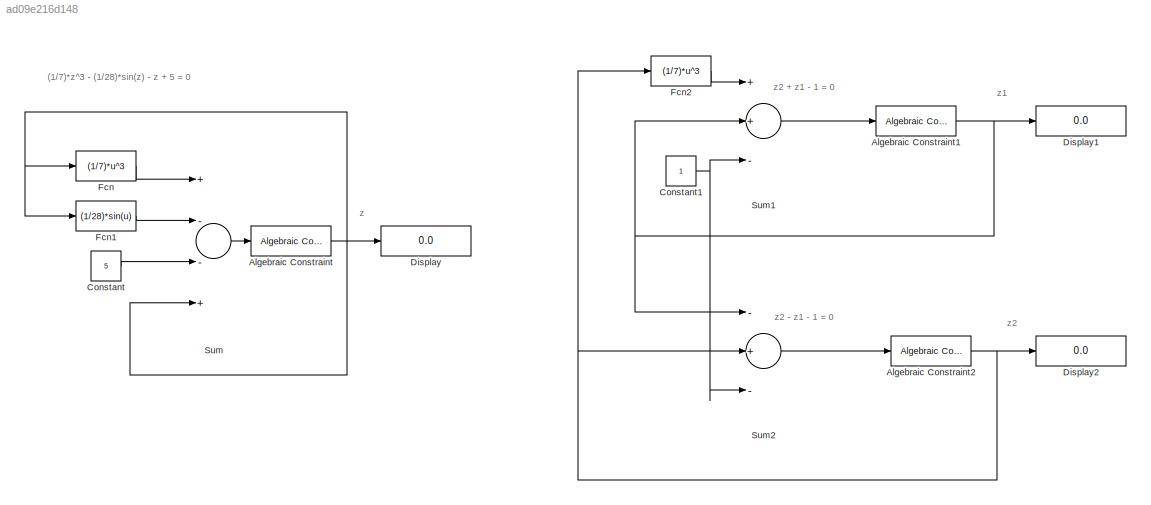
MODEL slx_ad09e216d148
KIND model
CONFIG AbsTol = auto
CONFIG FixedStep = 0.01
CONFIG MaxStep = auto
CONFIG MinStep = auto
CONFIG RelTol = 1e-3
CONFIG SampleTimeConstraint = Unconstrained
CONFIG Solver = ode4
CONFIG SolverMode = Auto
CONFIG SolverName = ode4
CONFIG StartTime = 0.0
CONFIG StopTime = 10.0
BLOCK [Reference] Algebraic Constraint  REF=simulink/Math
Operations/Algebraic Constraint
  Ports = [1, 1]
  SourceBlock = simulink/Math\nOperations/Algebraic Constraint
  SourceType = Algebraic Constraint
  z0 = 0
BLOCK [Reference] Algebraic Constraint1  REF=simulink/Math
Operations/Algebraic Constraint
  Ports = [1, 1]
  SourceBlock = simulink/Math\nOperations/Algebraic Constraint
  SourceType = Algebraic Constraint
  z0 = 0
BLOCK [Reference] Algebraic Constraint2  REF=simulink/Math
Operations/Algebraic Constraint
  Ports = [1, 1]
  SourceBlock = simulink/Math\nOperations/Algebraic Constraint
  SourceType = Algebraic Constraint
  z0 = 0
BLOCK [Constant] Constant
  Value = 5
BLOCK [Constant] Constant1
BLOCK [Display] Display
  Decimation = 1
  Ports = [1]
BLOCK [Display] Display1
  Decimation = 1
  Ports = [1]
BLOCK [Display] Display2
  Decimation = 1
  Ports = [1]
BLOCK [Fcn] Fcn
  Expr = (1/7)*u^3
BLOCK [Fcn] Fcn1
  Expr = (1/28)*sin(u)
BLOCK [Fcn] Fcn2
  Expr = (1/7)*u^3
BLOCK [Sum] Sum
  InputSameDT = off
  Inputs = +--+
  OutDataTypeStr = Inherit: Inherit via internal rule
  Ports = [4, 1]
  SaturateOnIntegerOverflow = off
BLOCK [Sum] Sum1
  InputSameDT = off
  Inputs = ++-
  OutDataTypeStr = Inherit: Inherit via internal rule
  Ports = [3, 1]
  SaturateOnIntegerOverflow = off
BLOCK [Sum] Sum2
  InputSameDT = off
  Inputs = -+-
  OutDataTypeStr = Inherit: Inherit via internal rule
  Ports = [3, 1]
  SaturateOnIntegerOverflow = off
ANNOTATION (root): (1/7)*z^3 - (1/28)*sin(z) - z + 5 = 0
ANNOTATION (root): z
ANNOTATION (root): z1
ANNOTATION (root): z2
ANNOTATION (root): z2 + z1 - 1 = 0
ANNOTATION (root): z2 - z1 - 1 = 0
NET Algebraic Constraint1:1 -> Display1:1, Sum1:2, Sum2:1
NET Algebraic Constraint2:1 -> Display2:1, Fcn2:1, Sum2:2
NET Algebraic Constraint:1 -> Display:1, Fcn1:1, Fcn:1, Sum:4
NET Constant1:1 -> Sum1:3, Sum2:3
LINE Constant:1 -> Sum:3
LINE Fcn1:1 -> Sum:2
LINE Fcn2:1 -> Sum1:1
LINE Fcn:1 -> Sum:1
LINE Sum1:1 -> Algebraic Constraint1:1
LINE Sum2:1 -> Algebraic Constraint2:1
LINE Sum:1 -> Algebraic Constraint:1
note: NET lines group one-source signal fan-out (src -> all destinations, sorted); 1:1 wires keep LINE
